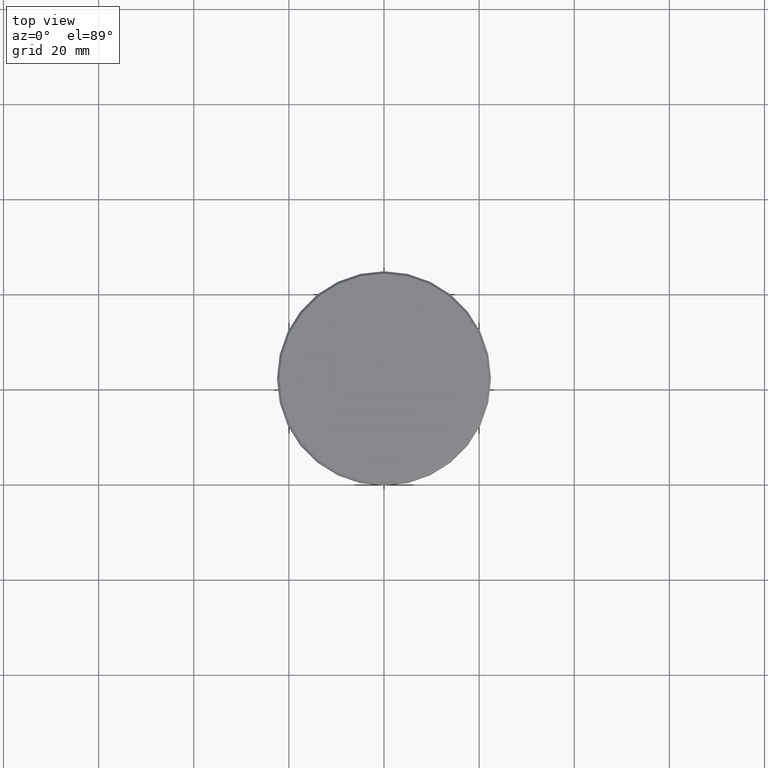
[diagram: clean part render]
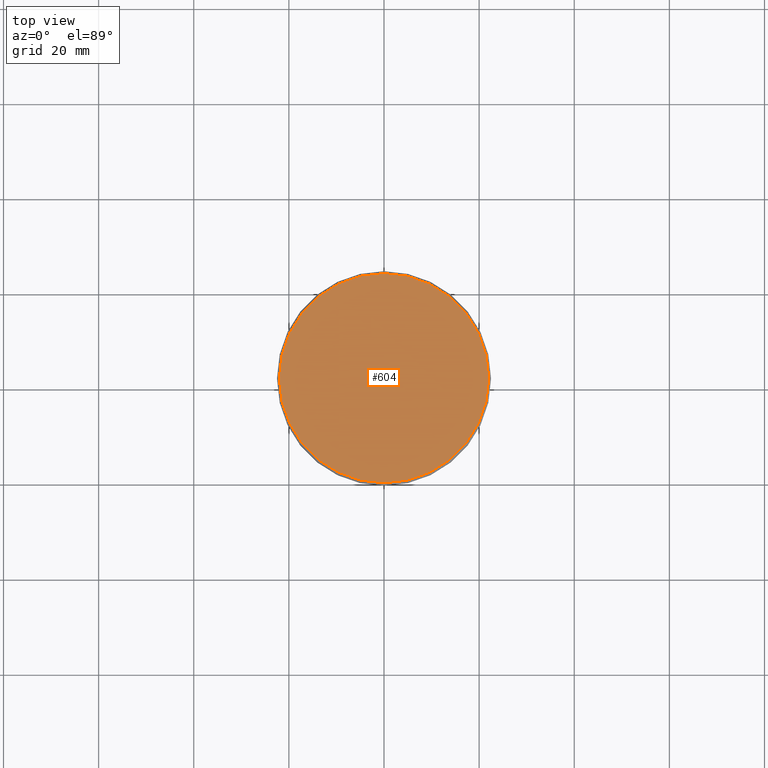
[diagram: same view with one face highlighted and labeled with its STEP entity id]
A machine part, top view. The second image highlights one B-rep face of the part: STEP entity #604.
In plain terms, the highlighted planar face has unit normal (0, -0, 1).
Its self-contained STEP definition (entity closure, byte-faithful):
#73 = EDGE_LOOP ( 'NONE', ( #428, #419 ) ) ;
#110 = CARTESIAN_POINT ( 'NONE',  ( 0.000000000000000000, 0.000000000000000000, 0.000000000000000000 ) ) ;
#226 = DIRECTION ( 'NONE',  ( 0.000000000000000000, -0.000000000000000000, 1.000000000000000000 ) ) ;
#281 = CIRCLE ( 'NONE', #615, 22.00000000000002132 ) ;
#331 = CARTESIAN_POINT ( 'NONE',  ( 0.000000000000000000, 0.000000000000000000, 0.000000000000000000 ) ) ;
#419 = ORIENTED_EDGE ( 'NONE', *, *, #1023, .T. ) ;
#420 = VERTEX_POINT ( 'NONE', #461 ) ;
#428 = ORIENTED_EDGE ( 'NONE', *, *, #584, .T. ) ;
#461 = CARTESIAN_POINT ( 'NONE',  ( 22.00000000000002132, 2.724839128102862174E-15, 0.000000000000000000 ) ) ;
#485 = CIRCLE ( 'NONE', #1168, 22.00000000000002132 ) ;
#494 = DIRECTION ( 'NONE',  ( -0.000000000000000000, -0.000000000000000000, 1.000000000000000000 ) ) ;
#584 = EDGE_CURVE ( 'NONE', #933, #420, #485, .T. ) ;
#604 = ADVANCED_FACE ( 'NONE', ( #1105 ), #864, .T. ) ;
#615 = AXIS2_PLACEMENT_3D ( 'NONE', #1020, #494, #1120 ) ;
#664 = DIRECTION ( 'NONE',  ( 1.000000000000000000, 0.000000000000000000, 0.000000000000000000 ) ) ;
#740 = AXIS2_PLACEMENT_3D ( 'NONE', #110, #226, #664 ) ;
#864 = PLANE ( 'NONE',  #740 ) ;
#916 = CARTESIAN_POINT ( 'NONE',  ( -22.00000000000002132, 0.000000000000000000, 0.000000000000000000 ) ) ;
#933 = VERTEX_POINT ( 'NONE', #916 ) ;
#940 = DIRECTION ( 'NONE',  ( 1.000000000000000000, 0.000000000000000000, 0.000000000000000000 ) ) ;
#953 = DIRECTION ( 'NONE',  ( -0.000000000000000000, -0.000000000000000000, 1.000000000000000000 ) ) ;
#1020 = CARTESIAN_POINT ( 'NONE',  ( 0.000000000000000000, 0.000000000000000000, 0.000000000000000000 ) ) ;
#1023 = EDGE_CURVE ( 'NONE', #420, #933, #281, .T. ) ;
#1105 = FACE_OUTER_BOUND ( 'NONE', #73, .T. ) ;
#1120 = DIRECTION ( 'NONE',  ( 1.000000000000000000, 0.000000000000000000, 0.000000000000000000 ) ) ;
#1168 = AXIS2_PLACEMENT_3D ( 'NONE', #331, #953, #940 ) ;